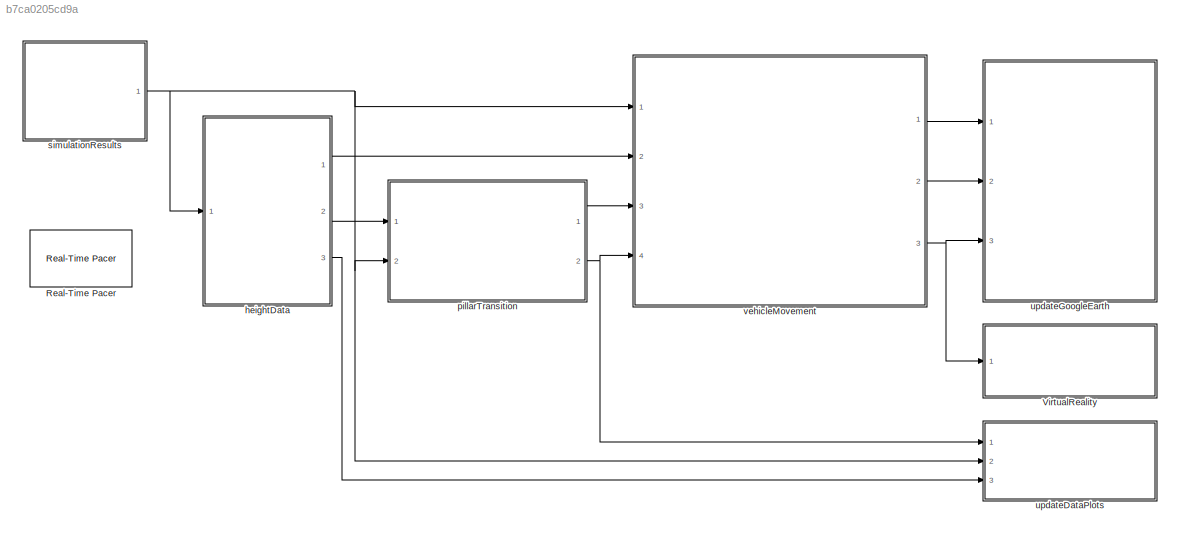
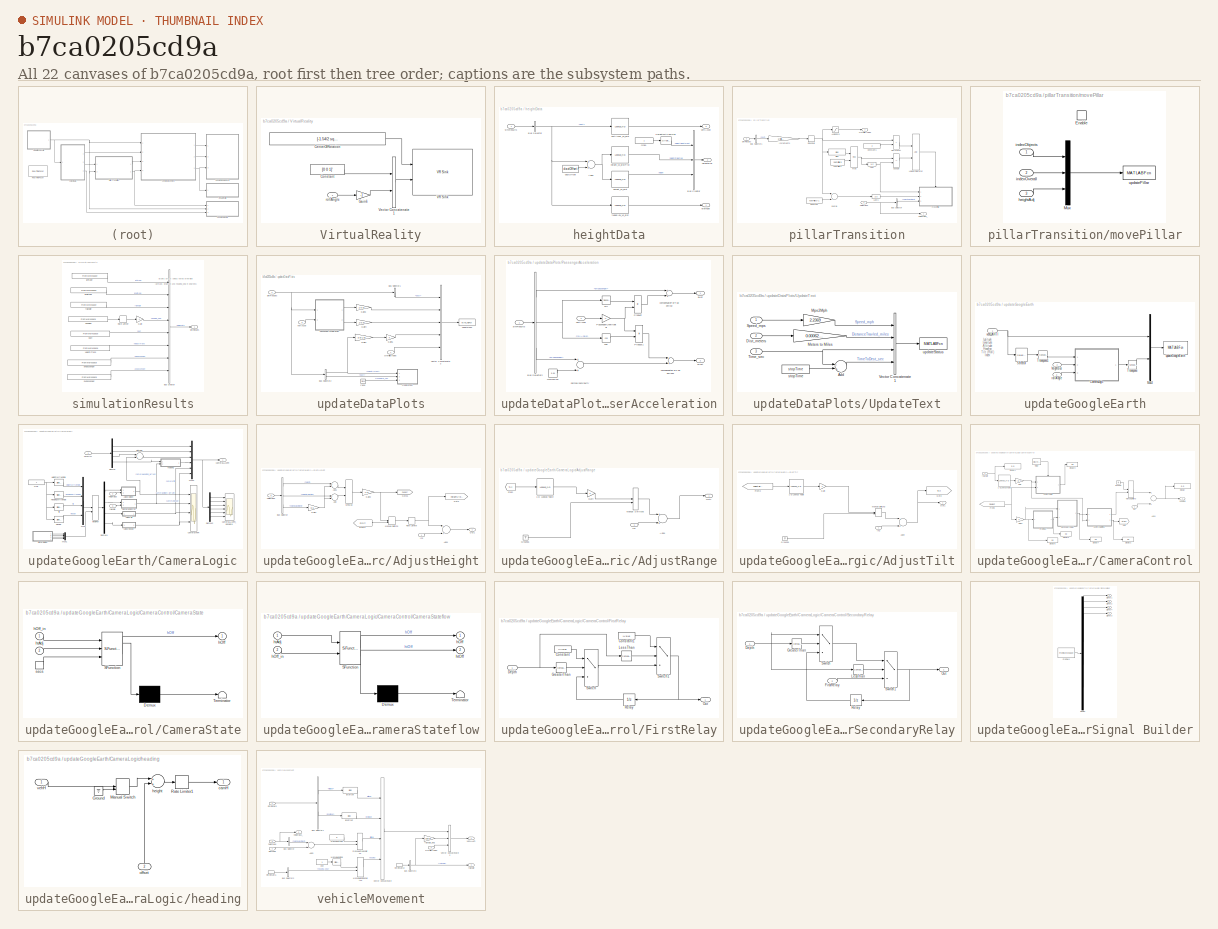
[diagram: thumbnail index - all 22 canvases of the model, root first then tree order]
MODEL slx_b7ca0205cd9a
KIND model
CONFIG AbsTol = auto
CONFIG EnableMultiTasking = on
CONFIG FixedStep = 0.025
CONFIG MaxStep = 0.1
CONFIG MinStep = auto
CONFIG RelTol = 1e-3
CONFIG SampleTimeConstraint = Unconstrained
CONFIG Solver = FixedStepDiscrete
CONFIG SolverName = FixedStepDiscrete
CONFIG StartTime = startTime
CONFIG StopTime = stopTime
BLOCK [Reference] Real-Time Pacer  REF=realtime_pacer_lib/Real-Time Pacer
  Ports = []
  SourceBlock = realtime_pacer_lib/Real-Time Pacer
  SourceType = RealTime_Pacer
BLOCK [SubSystem] VirtualReality
  Ports = [1]
  RequestExecContextInheritance = off
BLOCK [Constant] VirtualReality/CenterOfRotation
  SampleTime = -1
  Value = [-1.54/2 sqrt(Chassis.TubeRadius^2-(1.54/2)^2) 0]'
BLOCK [Constant] VirtualReality/Constant
  SampleTime = -1
  Value = [0 0 1]'
BLOCK [Gain] VirtualReality/Gain6
  Gain = -1
  OutDataTypeStr = Inherit: Inherit via internal rule
  ParamDataTypeStr = Inherit: Inherit via internal rule
  SaturateOnIntegerOverflow = off
BLOCK [Reference] VirtualReality/VR Sink  REF=vrlib/VR Sink
  InstantiateOnLoad = on
  Ports = [2]
  SourceBlock = vrlib/VR Sink
  SourceProductBaseCode = SL
  SourceProductName = Simulink
  SourceType = Virtual Reality Sink
BLOCK [Concatenate] VirtualReality/Vector Concatenate1
  Ports = [2, 1]
BLOCK [Inport] VirtualReality/rollAngle
  IconDisplay = Port number
BLOCK [SubSystem] heightData
  Ports = [1, 3]
  RequestExecContextInheritance = off
BLOCK [Sum] heightData/Add1
  InputSameDT = off
  OutDataTypeStr = Inherit: Inherit via internal rule
  Ports = [2, 1]
  SaturateOnIntegerOverflow = off
BLOCK [BusCreator] heightData/Bus Creator
  DisplayOption = bar
  InheritFromInputs = on
  Inputs = 3
  Ports = [3, 1]
BLOCK [BusSelector] heightData/Bus Selector
  OutputAsBus = off
  OutputSignals = dact
  Ports = [1, 1]
BLOCK [Reference] heightData/HeightWrtVehicle1  REF=simulink/Math
Operations/Slider
Gain
  Ports = [1, 1]
  SourceBlock = simulink/Math\nOperations/Slider\nGain
  SourceProductBaseCode = SL
  SourceProductName = Simulink
  SourceType = Slider Gain
BLOCK [Constant] heightData/One1
  VectorParams1D = off
BLOCK [Constant] heightData/dactOffset
  Value = dactOffset
BLOCK [Outport] heightData/elevTube
  IconDisplay = Port number
BLOCK [Outport] heightData/heightBus
  IconDisplay = Port number
  Port = 2
BLOCK [Lookup_n-D] heightData/height_vs_dist
  BeginIndexSearchUsingPreviousIndexResult = on
  BreakpointsForDimension1 = z_dist
  ExtrapMethod = Clip
  InternalRulePriority = Speed
  NumberOfTableDimensions = 1
  Ports = [1, 1]
  RndMeth = Simplest
  Table = z_height
BLOCK [Lookup_n-D] heightData/height_vs_distProj
  BeginIndexSearchUsingPreviousIndexResult = on
  BreakpointsForDimension1 = z_dist-200
  ExtrapMethod = Clip
  InternalRulePriority = Speed
  NumberOfTableDimensions = 1
  Ports = [1, 1]
  RndMeth = Simplest
  Table = z_height
  UseLastTableValue = on
BLOCK [Inport] heightData/simResults
  IconDisplay = Port number
BLOCK [Lookup_n-D] heightData/tubeElev_vs_dist
  BeginIndexSearchUsingPreviousIndexResult = on
  BreakpointsForDimension1 = z_dist
  InternalRulePriority = Speed
  NumberOfTableDimensions = 1
  Ports = [1, 1]
  RndMeth = Simplest
  Table = z_elevTube
BLOCK [Outport] heightData/vertAccel
  IconDisplay = Port number
  Port = 3
BLOCK [Lookup_n-D] heightData/vertAccel_vs_dist
  BeginIndexSearchUsingPreviousIndexResult = on
  BreakpointsForDimension1 = z_dist
  ExtrapMethod = Clip
  InternalRulePriority = Speed
  NumberOfTableDimensions = 1
  Ports = [1, 1]
  RndMeth = Simplest
  Table = z_accel
  UseLastTableValue = on
BLOCK [SubSystem] pillarTransition
  Ports = [2, 2]
  RequestExecContextInheritance = off
BLOCK [Saturate] pillarTransition/AvoidZero
  InputPortMap = u0
  LowerLimit = 1
  Ports = [1, 1]
  UpperLimit = inf
BLOCK [Bias] pillarTransition/Bias
  Bias = numPillars-2
  SaturateOnIntegerOverflow = off
BLOCK [BusSelector] pillarTransition/Bus Selector
  OutputAsBus = off
  OutputSignals = heightAdjustment
  Ports = [1, 1]
BLOCK [BusSelector] pillarTransition/Bus Selector1
  OutputAsBus = off
  OutputSignals = dact
  Ports = [1, 1]
BLOCK [RelationalOperator] pillarTransition/Change
  InputSameDT = off
  Operator = ~=
  OutDataTypeStr = boolean
  Ports = [2, 1]
BLOCK [Constant] pillarTransition/Constant
  Value = numPillars-1
BLOCK [Constant] pillarTransition/Constant1
  Value = 2
BLOCK [Gain] pillarTransition/Increments
  Gain = 1/pillarSpacing
  OutDataTypeStr = Inherit: Inherit via internal rule
  ParamDataTypeStr = Inherit: Inherit via internal rule
  SaturateOnIntegerOverflow = off
BLOCK [UnitDelay] pillarTransition/Last
  HasFrameUpgradeWarning = on
  SampleTime = -1
BLOCK [UnitDelay] pillarTransition/Last1
  HasFrameUpgradeWarning = on
  InitialCondition = 1
  SampleTime = -1
BLOCK [Logic] pillarTransition/Logical Operator
  AllPortsSameDT = off
  OutDataTypeStr = boolean
  Ports = [2, 1]
BLOCK [RelationalOperator] pillarTransition/NotAtStart
  InputSameDT = off
  Operator = >
  OutDataTypeStr = boolean
  Ports = [2, 1]
BLOCK [Rounding] pillarTransition/RoundUp
  Operator = ceil
BLOCK [Outport] pillarTransition/crntPillarIndex
  IconDisplay = Port number
  Port = 2
BLOCK [Inport] pillarTransition/heightBus
  IconDisplay = Port number
BLOCK [Outport] pillarTransition/heightBus_
  IconDisplay = Port number
BLOCK [Math] pillarTransition/mod
  Operator = mod
  Ports = [2, 1]
BLOCK [SubSystem] pillarTransition/movePillar
  Ports = [3, 0, 1]
  RequestExecContextInheritance = off
  TreatAsAtomicUnit = on
BLOCK [EnablePort] pillarTransition/movePillar/Enable
  Ports = []
  StatesWhenEnabling = reset
BLOCK [Mux] pillarTransition/movePillar/Mux
  DisplayOption = bar
  Inputs = 3
  Ports = [3, 1]
BLOCK [Inport] pillarTransition/movePillar/heightAdj
  IconDisplay = Port number
  Port = 3
BLOCK [Inport] pillarTransition/movePillar/indexObjects
  IconDisplay = Port number
BLOCK [Inport] pillarTransition/movePillar/indexOverall
  IconDisplay = Port number
  Port = 2
BLOCK [MATLABFcn] pillarTransition/movePillar/updatePillar
  MATLABFcn = updatePillars
  OutputDimensions = 0
  Ports = [1]
BLOCK [Constant] pillarTransition/numPillars
  Value = numPillars
BLOCK [Sum] pillarTransition/overall
  InputSameDT = off
  OutDataTypeStr = Inherit: Inherit via internal rule
  Ports = [2, 1]
  SaturateOnIntegerOverflow = off
BLOCK [Inport] pillarTransition/simResults
  IconDisplay = Port number
  Port = 2
BLOCK [SubSystem] simulationResults
  Ports = [0, 1]
  RequestExecContextInheritance = off
BLOCK [BusCreator] simulationResults/Bus Creator
  DisplayOption = bar
  InheritFromInputs = on
  Inputs = 8
  Ports = [8, 1]
BLOCK [Gain] simulationResults/Gain
  Gain = -1
  OutDataTypeStr = Inherit: Inherit via internal rule
  ParamDataTypeStr = Inherit: Inherit via internal rule
  SaturateOnIntegerOverflow = off
BLOCK [RateLimiter] simulationResults/Rate Limiter
  FallingSlewLimit = -5
  InitialCondition = getLOatTime(logsout, 'heading_deg', startTime)
  RisingSlewLimit = 5
  SampleTimeMode = inherited
BLOCK [FromWorkspace] simulationResults/aHpassenger
  VariableName = logsout.getElement('aHpassenger')
  ZeroCross = on
BLOCK [FromWorkspace] simulationResults/aVpassenger
  VariableName = logsout.getElement('aVpassenger')
  ZeroCross = on
BLOCK [FromWorkspace] simulationResults/dact
  VariableName = logsout.getElement('dact')
  ZeroCross = on
BLOCK [FromWorkspace] simulationResults/heading
  VariableName = logsout.getElement('heading_deg')
  ZeroCross = on
BLOCK [FromWorkspace] simulationResults/latitude
  VariableName = logsout.getElement('lat')
  ZeroCross = on
BLOCK [FromWorkspace] simulationResults/longitude
  VariableName = logsout.getElement('lon')
  ZeroCross = on
BLOCK [FromWorkspace] simulationResults/rollAngle
  VariableName = logsout.getElement('rollAngle')
  ZeroCross = on
BLOCK [Outport] simulationResults/simResults
  IconDisplay = Port number
BLOCK [FromWorkspace] simulationResults/velocityTrans
  VariableName = logsout.getElement('velocityTrans')
  ZeroCross = on
BLOCK [SubSystem] updateDataPlots
  Ports = [3]
  RequestExecContextInheritance = off
BLOCK [BusSelector] updateDataPlots/Bus Selector1
  OutputAsBus = off
  OutputSignals = dact
  Ports = [1, 1]
BLOCK [BusSelector] updateDataPlots/Bus Selector2
  OutputAsBus = off
  OutputSignals = velocityTrans,dact
  Ports = [1, 2]
BLOCK [Clock] updateDataPlots/Clock
BLOCK [Gain] updateDataPlots/Gain1
  Gain = 3.6/1.61
  OutDataTypeStr = Inherit: Inherit via internal rule
  ParamDataTypeStr = Inherit: Inherit via internal rule
  SaturateOnIntegerOverflow = off
BLOCK [Gain] updateDataPlots/Gain3
  Gain = 1/9.81
  OutDataTypeStr = Inherit: Inherit via internal rule
  ParamDataTypeStr = Inherit: Inherit via internal rule
  SaturateOnIntegerOverflow = off
BLOCK [Gain] updateDataPlots/Gain4
  Gain = 1/9.81
  OutDataTypeStr = Inherit: Inherit via internal rule
  ParamDataTypeStr = Inherit: Inherit via internal rule
  SaturateOnIntegerOverflow = off
BLOCK [Gain] updateDataPlots/Gain5
  OutDataTypeStr = Inherit: Inherit via internal rule
  ParamDataTypeStr = Inherit: Inherit via internal rule
  SaturateOnIntegerOverflow = off
BLOCK [SubSystem] updateDataPlots/PassengerAcceleration
  Ports = [2, 2]
  RequestExecContextInheritance = off
BLOCK [BusSelector] updateDataPlots/PassengerAcceleration/Bus Selector2
  OutputAsBus = off
  OutputSignals = aHpassenger,rollAngle,aVpassenger
  Ports = [1, 3]
BLOCK [Constant] updateDataPlots/PassengerAcceleration/Normalize
  Value = 9.81
BLOCK [Gain] updateDataPlots/PassengerAcceleration/PassengerCentripetal
  Gain = -1
  OutDataTypeStr = Inherit: Inherit via internal rule
  ParamDataTypeStr = Inherit: Inherit via internal rule
  SaturateOnIntegerOverflow = off
BLOCK [Product] updateDataPlots/PassengerAcceleration/Product
  InputSameDT = off
  OutDataTypeStr = Inherit: Inherit via internal rule
  Ports = [2, 1]
  RndMeth = Floor
  SaturateOnIntegerOverflow = off
BLOCK [Product] updateDataPlots/PassengerAcceleration/Product1
  InputSameDT = off
  OutDataTypeStr = Inherit: Inherit via internal rule
  Ports = [2, 1]
  RndMeth = Floor
  SaturateOnIntegerOverflow = off
BLOCK [Outport] updateDataPlots/PassengerAcceleration/aHor
  IconDisplay = Port number
BLOCK [Outport] updateDataPlots/PassengerAcceleration/aVert
  IconDisplay = Port number
  Port = 2
BLOCK [Sum] updateDataPlots/PassengerAcceleration/compensateForTubeRise
  InputSameDT = off
  OutDataTypeStr = Inherit: Inherit via internal rule
  Ports = [2, 1]
  SaturateOnIntegerOverflow = off
BLOCK [Sum] updateDataPlots/PassengerAcceleration/compensateForTubeRise1
  InputSameDT = off
  OutDataTypeStr = Inherit: Inherit via internal rule
  Ports = [2, 1]
  SaturateOnIntegerOverflow = off
BLOCK [Trigonometry] updateDataPlots/PassengerAcceleration/cos
  Operator = cos
  Ports = [1, 1]
BLOCK [Sum] updateDataPlots/PassengerAcceleration/normalizeGravity
  InputSameDT = off
  OutDataTypeStr = Inherit: Inherit via internal rule
  Ports = [2, 1]
  SaturateOnIntegerOverflow = off
BLOCK [Inport] updateDataPlots/PassengerAcceleration/simResults
  IconDisplay = Port number
BLOCK [Trigonometry] updateDataPlots/PassengerAcceleration/sin
  Ports = [1, 1]
BLOCK [Inport] updateDataPlots/PassengerAcceleration/vertAccel
  IconDisplay = Port number
  Port = 2
BLOCK [SubSystem] updateDataPlots/UpdateText
  Ports = [3]
  RequestExecContextInheritance = off
BLOCK [Sum] updateDataPlots/UpdateText/Add
  InputSameDT = off
  Inputs = -+
  OutDataTypeStr = Inherit: Inherit via internal rule
  Ports = [2, 1]
  SaturateOnIntegerOverflow = off
BLOCK [Inport] updateDataPlots/UpdateText/Dist_meters
  IconDisplay = Port number
  Port = 2
BLOCK [Gain] updateDataPlots/UpdateText/Meters to Miles
  Gain = 0.000621371
  OutDataTypeStr = Inherit: Inherit via internal rule
  ParamDataTypeStr = Inherit: Inherit via internal rule
  SaturateOnIntegerOverflow = off
BLOCK [Gain] updateDataPlots/UpdateText/Mps2Mph
  Gain = 2.2369
  OutDataTypeStr = Inherit: Inherit via internal rule
  ParamDataTypeStr = Inherit: Inherit via internal rule
  SaturateOnIntegerOverflow = off
BLOCK [Inport] updateDataPlots/UpdateText/Speed_mps
  IconDisplay = Port number
BLOCK [Inport] updateDataPlots/UpdateText/Time_sec
  IconDisplay = Port number
  Port = 3
BLOCK [Concatenate] updateDataPlots/UpdateText/Vector Concatenate1
  ConcatenateDimension = 2
  Mode = Multidimensional array
  NumInputs = 4
  Ports = [4, 1]
BLOCK [Constant] updateDataPlots/UpdateText/stopTime
  Value = stopTime
BLOCK [MATLABFcn] updateDataPlots/UpdateText/updateStatus
  MATLABFcn = updateStatus
  OutputDimensions = 0
  Ports = [1]
BLOCK [Concatenate] updateDataPlots/Vector Concatenate3
  ConcatenateDimension = 2
  Mode = Multidimensional array
  NumInputs = 5
  Ports = [5, 1]
BLOCK [Inport] updateDataPlots/crntPillarIndex
  IconDisplay = Port number
BLOCK [Inport] updateDataPlots/simResults
  IconDisplay = Port number
  Port = 2
BLOCK [MATLABFcn] updateDataPlots/updateAxes
  MATLABFcn = updateAxes
  OutputDimensions = 0
  Ports = [1]
BLOCK [Inport] updateDataPlots/vertAccel
  IconDisplay = Port number
  Port = 3
BLOCK [SubSystem] updateGoogleEarth
  Ports = [3]
  RequestExecContextInheritance = off
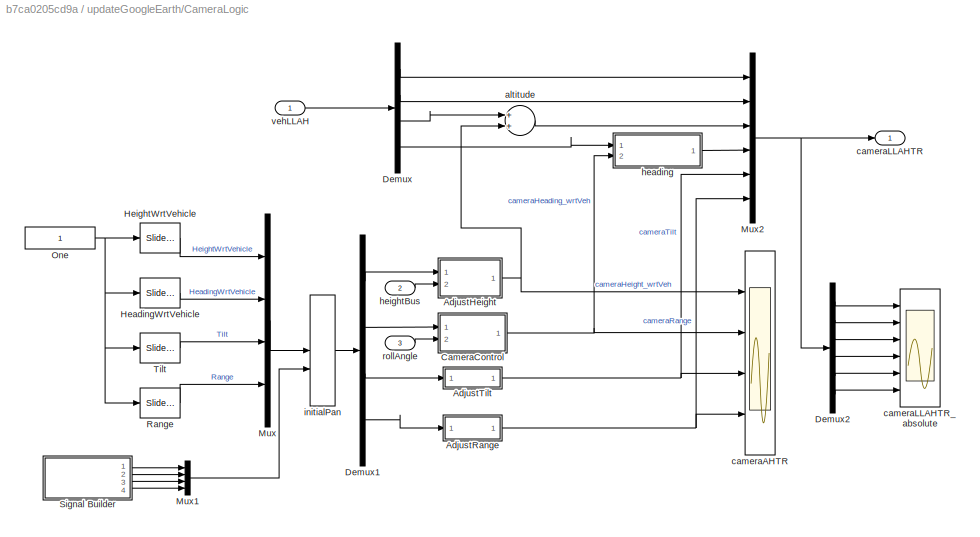
BLOCK [SubSystem] updateGoogleEarth/CameraLogic
  Ports = [3, 1]
  RequestExecContextInheritance = off
BLOCK [SubSystem] updateGoogleEarth/CameraLogic/AdjustHeight
  Ports = [2, 1]
  RequestExecContextInheritance = off
BLOCK [Sum] updateGoogleEarth/CameraLogic/AdjustHeight/Add
  InputSameDT = off
  OutDataTypeStr = Inherit: Inherit via internal rule
  Ports = [2, 1]
  SaturateOnIntegerOverflow = off
BLOCK [Sum] updateGoogleEarth/CameraLogic/AdjustHeight/Add1
  InputSameDT = off
  OutDataTypeStr = Inherit: Inherit via internal rule
  Ports = [2, 1]
  SaturateOnIntegerOverflow = off
BLOCK [Sum] updateGoogleEarth/CameraLogic/AdjustHeight/Add4
  InputSameDT = off
  OutDataTypeStr = Inherit: Inherit via internal rule
  Ports = [2, 1]
  SaturateOnIntegerOverflow = off
BLOCK [BusSelector] updateGoogleEarth/CameraLogic/AdjustHeight/Bus Selector
  OutputAsBus = off
  OutputSignals = height,heightProjected,heightAdjustment
  Ports = [1, 3]
BLOCK [From] updateGoogleEarth/CameraLogic/AdjustHeight/From3
  GotoTag = htOff
  TagVisibility = global
BLOCK [Gain] updateGoogleEarth/CameraLogic/AdjustHeight/Gain1
  Gain = 0.5
  OutDataTypeStr = Inherit: Inherit via internal rule
  ParamDataTypeStr = Inherit: Inherit via internal rule
  SaturateOnIntegerOverflow = off
BLOCK [Gain] updateGoogleEarth/CameraLogic/AdjustHeight/Gain2
  Gain = -1.5
  OutDataTypeStr = Inherit: Inherit via internal rule
  ParamDataTypeStr = Inherit: Inherit via internal rule
  SaturateOnIntegerOverflow = off
BLOCK [Goto] updateGoogleEarth/CameraLogic/AdjustHeight/Goto
  GotoTag = heightViewAdjust
  TagVisibility = global
BLOCK [Goto] updateGoogleEarth/CameraLogic/AdjustHeight/Goto1
  GotoTag = htAdjust
  TagVisibility = global
BLOCK [Inport] updateGoogleEarth/CameraLogic/AdjustHeight/In2
  IconDisplay = Port number
BLOCK [ManualSwitch] updateGoogleEarth/CameraLogic/AdjustHeight/Manual Switch3
  CurrentSetting = 0
BLOCK [MinMax] updateGoogleEarth/CameraLogic/AdjustHeight/MinMax
  InputSameDT = off
  Inputs = 2
  Ports = [2, 1]
  SaturateOnIntegerOverflow = off
BLOCK [Outport] updateGoogleEarth/CameraLogic/AdjustHeight/Out1
  IconDisplay = Port number
BLOCK [RateLimiter] updateGoogleEarth/CameraLogic/AdjustHeight/Rate Limiter
  FallingSlewLimit = -5
  RisingSlewLimit = 5
  SampleTimeMode = inherited
BLOCK [Inport] updateGoogleEarth/CameraLogic/AdjustHeight/heightBus
  IconDisplay = Port number
  Port = 2
BLOCK [SubSystem] updateGoogleEarth/CameraLogic/AdjustRange
  Ports = [1, 1]
  RequestExecContextInheritance = off
BLOCK [Lookup_n-D] updateGoogleEarth/CameraLogic/AdjustRange/1-D Lookup Table
  BreakpointsForDimension1 = [0 45 90]
  ExtrapMethod = Clip
  InternalRulePriority = Speed
  NumberOfTableDimensions = 1
  Ports = [1, 1]
  RndMeth = Simplest
  Table = [120 80 0]
  UseLastTableValue = on
BLOCK [Sum] updateGoogleEarth/CameraLogic/AdjustRange/Add4
  InputSameDT = off
  OutDataTypeStr = Inherit: Inherit via internal rule
  Ports = [2, 1]
  SaturateOnIntegerOverflow = off
BLOCK [From] updateGoogleEarth/CameraLogic/AdjustRange/From
  GotoTag = Tilt
  TagVisibility = global
BLOCK [Gain] updateGoogleEarth/CameraLogic/AdjustRange/Gain
  OutDataTypeStr = Inherit: Inherit via internal rule
  ParamDataTypeStr = Inherit: Inherit via internal rule
  SaturateOnIntegerOverflow = off
BLOCK [Ground] updateGoogleEarth/CameraLogic/AdjustRange/Ground1
BLOCK [Inport] updateGoogleEarth/CameraLogic/AdjustRange/In2
  IconDisplay = Port number
BLOCK [ManualSwitch] updateGoogleEarth/CameraLogic/AdjustRange/Manual Switch3
BLOCK [Outport] updateGoogleEarth/CameraLogic/AdjustRange/Out1
  IconDisplay = Port number
BLOCK [SubSystem] updateGoogleEarth/CameraLogic/AdjustTilt
  Ports = [1, 1]
  RequestExecContextInheritance = off
BLOCK [Lookup_n-D] updateGoogleEarth/CameraLogic/AdjustTilt/1-D Lookup Table
  BreakpointsForDimension1 = [0 2 30 60]
  InternalRulePriority = Speed
  NumberOfTableDimensions = 1
  Ports = [1, 1]
  RndMeth = Simplest
  Table = [0  -5 -50 -80]
BLOCK [Sum] updateGoogleEarth/CameraLogic/AdjustTilt/Add4
  InputSameDT = off
  OutDataTypeStr = Inherit: Inherit via internal rule
  Ports = [2, 1]
  SaturateOnIntegerOverflow = off
BLOCK [From] updateGoogleEarth/CameraLogic/AdjustTilt/From2
  GotoTag = heightViewAdjust
  TagVisibility = global
BLOCK [Gain] updateGoogleEarth/CameraLogic/AdjustTilt/Gain
  OutDataTypeStr = Inherit: Inherit via internal rule
  ParamDataTypeStr = Inherit: Inherit via internal rule
  SaturateOnIntegerOverflow = off
BLOCK [Goto] updateGoogleEarth/CameraLogic/AdjustTilt/Goto
  GotoTag = Tilt
  TagVisibility = global
BLOCK [Ground] updateGoogleEarth/CameraLogic/AdjustTilt/Ground1
BLOCK [Inport] updateGoogleEarth/CameraLogic/AdjustTilt/In2
  IconDisplay = Port number
BLOCK [ManualSwitch] updateGoogleEarth/CameraLogic/AdjustTilt/Manual Switch3
BLOCK [Outport] updateGoogleEarth/CameraLogic/AdjustTilt/Out1
  IconDisplay = Port number
BLOCK [SubSystem] updateGoogleEarth/CameraLogic/CameraControl
  Ports = [2, 1]
  RequestExecContextInheritance = off
BLOCK [Lookup_n-D] updateGoogleEarth/CameraLogic/CameraControl/1-D Lookup Table
  BreakpointsForDimension1 = [-0.5 0 0.5]
  InternalRulePriority = Speed
  NumberOfTableDimensions = 1
  Ports = [1, 1]
  RndMeth = Simplest
  Table = [-30 0 30]
BLOCK [Sum] updateGoogleEarth/CameraLogic/CameraControl/Add4
  InputSameDT = off
  OutDataTypeStr = Inherit: Inherit via internal rule
  Ports = [2, 1]
  SaturateOnIntegerOverflow = off
BLOCK [SubSystem] updateGoogleEarth/CameraLogic/CameraControl/CameraState
  ErrorFcn = Stateflow.Translate.translate
  PermitHierarchicalResolution = ExplicitOnly
  Ports = [2, 1, 0, 1]
  RequestExecContextInheritance = off
  SFBlockType = Chart
  TreatAsAtomicUnit = on
BLOCK [Demux] updateGoogleEarth/CameraLogic/CameraControl/CameraState/ Demux 
  Outputs = 1
  Ports = [1, 1]
BLOCK [S-Function] updateGoogleEarth/CameraLogic/CameraControl/CameraState/ SFunction 
  EnableBusSupport = off
  FunctionName = sf_sfun
  PortCounts = [3 2]
  Ports = [3, 2]
  SFcnIsStateOwnerBlock = off
  SFunctionDeploymentMode = off
  Tag = Stateflow S-Function 3
BLOCK [Terminator] updateGoogleEarth/CameraLogic/CameraControl/CameraState/ Terminator 
BLOCK [Outport] updateGoogleEarth/CameraLogic/CameraControl/CameraState/hOff
  IconDisplay = Port number
BLOCK [Inport] updateGoogleEarth/CameraLogic/CameraControl/CameraState/hOff_in
  IconDisplay = Port number
BLOCK [Inport] updateGoogleEarth/CameraLogic/CameraControl/CameraState/htAdj
  IconDisplay = Port number
  Port = 2
BLOCK [TriggerPort] updateGoogleEarth/CameraLogic/CameraControl/CameraState/secs
  Ports = [0, 1]
  ShowOutputPort = on
  StatesWhenEnabling = held
  VariantControl = (inherit)
BLOCK [SubSystem] updateGoogleEarth/CameraLogic/CameraControl/CameraStateflow
  ErrorFcn = Stateflow.Translate.translate
  PermitHierarchicalResolution = ExplicitOnly
  Ports = [2, 2]
  RequestExecContextInheritance = off
  SFBlockType = Chart
  TreatAsAtomicUnit = on
BLOCK [Demux] updateGoogleEarth/CameraLogic/CameraControl/CameraStateflow/ Demux 
  Outputs = 1
  Ports = [1, 1]
BLOCK [S-Function] updateGoogleEarth/CameraLogic/CameraControl/CameraStateflow/ SFunction 
  EnableBusSupport = off
  FunctionName = sf_sfun
  Parameters = camHt_1LVal,camHt_1UVal
  PortCounts = [2 3]
  Ports = [2, 3]
  SFcnIsStateOwnerBlock = off
  SFunctionDeploymentMode = off
  Tag = Stateflow S-Function 1
BLOCK [Terminator] updateGoogleEarth/CameraLogic/CameraControl/CameraStateflow/ Terminator 
BLOCK [Outport] updateGoogleEarth/CameraLogic/CameraControl/CameraStateflow/hOff
  IconDisplay = Port number
BLOCK [Inport] updateGoogleEarth/CameraLogic/CameraControl/CameraStateflow/hOff_in
  IconDisplay = Port number
  Port = 2
BLOCK [Inport] updateGoogleEarth/CameraLogic/CameraControl/CameraStateflow/htAdj
  IconDisplay = Port number
BLOCK [Outport] updateGoogleEarth/CameraLogic/CameraControl/CameraStateflow/htOff
  IconDisplay = Port number
  Port = 2
BLOCK [Display] updateGoogleEarth/CameraLogic/CameraControl/Display
  Decimation = 1
  Ports = [1]
BLOCK [Display] updateGoogleEarth/CameraLogic/CameraControl/Display1
  Decimation = 1
  Ports = [1]
BLOCK [Display] updateGoogleEarth/CameraLogic/CameraControl/Display2
  Decimation = 1
  Ports = [1]
BLOCK [Display] updateGoogleEarth/CameraLogic/CameraControl/Display3
  Decimation = 1
  Ports = [1]
BLOCK [Display] updateGoogleEarth/CameraLogic/CameraControl/Display5
  Decimation = 1
  Ports = [1]
BLOCK [Display] updateGoogleEarth/CameraLogic/CameraControl/Display6
  Decimation = 1
  Ports = [1]
BLOCK [Display] updateGoogleEarth/CameraLogic/CameraControl/Display7
  Decimation = 1
  Ports = [1]
BLOCK [SubSystem] updateGoogleEarth/CameraLogic/CameraControl/FirstRelay
  Ports = [1, 1]
  RequestExecContextInheritance = off
BLOCK [Constant] updateGoogleEarth/CameraLogic/CameraControl/FirstRelay/Constant
  Value = UValue
BLOCK [Constant] updateGoogleEarth/CameraLogic/CameraControl/FirstRelay/Constant1
  Value = LValue
BLOCK [Inport] updateGoogleEarth/CameraLogic/CameraControl/FirstRelay/Depth
  IconDisplay = Port number
BLOCK [Reference] updateGoogleEarth/CameraLogic/CameraControl/FirstRelay/GreaterThan  REF=simulink/Logic and Bit
Operations/Compare
To Constant
  Ports = [1, 1]
  SourceBlock = simulink/Logic and Bit\nOperations/Compare\nTo Constant
  SourceProductBaseCode = SL
  SourceProductName = Simulink
  SourceType = Compare To Constant
BLOCK [Reference] updateGoogleEarth/CameraLogic/CameraControl/FirstRelay/LessThan  REF=simulink/Logic and Bit
Operations/Compare
To Constant
  Ports = [1, 1]
  SourceBlock = simulink/Logic and Bit\nOperations/Compare\nTo Constant
  SourceProductBaseCode = SL
  SourceProductName = Simulink
  SourceType = Compare To Constant
BLOCK [Outport] updateGoogleEarth/CameraLogic/CameraControl/FirstRelay/Out
  IconDisplay = Port number
BLOCK [UnitDelay] updateGoogleEarth/CameraLogic/CameraControl/FirstRelay/Relay
  HasFrameUpgradeWarning = on
  SampleTime = -1
BLOCK [Switch] updateGoogleEarth/CameraLogic/CameraControl/FirstRelay/Switch
  Criteria = u2 > Threshold
  InputSameDT = off
  SaturateOnIntegerOverflow = off
BLOCK [Switch] updateGoogleEarth/CameraLogic/CameraControl/FirstRelay/Switch1
  Criteria = u2 > Threshold
  InputSameDT = off
  SaturateOnIntegerOverflow = off
BLOCK [From] updateGoogleEarth/CameraLogic/CameraControl/From2
  GotoTag = htAdjust
  TagVisibility = global
BLOCK [Gain] updateGoogleEarth/CameraLogic/CameraControl/Gain
  Gain = -0.7
  OutDataTypeStr = Inherit: Inherit via internal rule
  ParamDataTypeStr = Inherit: Inherit via internal rule
  SaturateOnIntegerOverflow = off
BLOCK [Gain] updateGoogleEarth/CameraLogic/CameraControl/Gain1
  OutDataTypeStr = Inherit: Inherit via internal rule
  ParamDataTypeStr = Inherit: Inherit via internal rule
  SaturateOnIntegerOverflow = off
BLOCK [Goto] updateGoogleEarth/CameraLogic/CameraControl/Goto
  GotoTag = htOff
  TagVisibility = global
BLOCK [Ground] updateGoogleEarth/CameraLogic/CameraControl/Ground
BLOCK [Inport] updateGoogleEarth/CameraLogic/CameraControl/In2
  IconDisplay = Port number
BLOCK [ManualSwitch] updateGoogleEarth/CameraLogic/CameraControl/Manual Switch3
  CurrentSetting = 0
BLOCK [SubSystem] updateGoogleEarth/CameraLogic/CameraControl/SecondaryRelay
  Ports = [2, 1]
  RequestExecContextInheritance = off
BLOCK [Inport] updateGoogleEarth/CameraLogic/CameraControl/SecondaryRelay/Depth
  IconDisplay = Port number
BLOCK [Inport] updateGoogleEarth/CameraLogic/CameraControl/SecondaryRelay/FirstRelay
  IconDisplay = Port number
  Port = 2
BLOCK [Reference] updateGoogleEarth/CameraLogic/CameraControl/SecondaryRelay/GreaterThan  REF=simulink/Logic and Bit
Operations/Compare
To Constant
  Ports = [1, 1]
  SourceBlock = simulink/Logic and Bit\nOperations/Compare\nTo Constant
  SourceProductBaseCode = SL
  SourceProductName = Simulink
  SourceType = Compare To Constant
BLOCK [Reference] updateGoogleEarth/CameraLogic/CameraControl/SecondaryRelay/LessThan  REF=simulink/Logic and Bit
Operations/Compare
To Constant
  Ports = [1, 1]
  SourceBlock = simulink/Logic and Bit\nOperations/Compare\nTo Constant
  SourceProductBaseCode = SL
  SourceProductName = Simulink
  SourceType = Compare To Constant
BLOCK [Outport] updateGoogleEarth/CameraLogic/CameraControl/SecondaryRelay/Out
  IconDisplay = Port number
BLOCK [UnitDelay] updateGoogleEarth/CameraLogic/CameraControl/SecondaryRelay/Relay
  HasFrameUpgradeWarning = on
  SampleTime = -1
BLOCK [Switch] updateGoogleEarth/CameraLogic/CameraControl/SecondaryRelay/Switch
  Criteria = u2 > Threshold
  InputSameDT = off
  SaturateOnIntegerOverflow = off
BLOCK [Switch] updateGoogleEarth/CameraLogic/CameraControl/SecondaryRelay/Switch1
  Criteria = u2 > Threshold
  InputSameDT = off
  SaturateOnIntegerOverflow = off
BLOCK [DiscretePulseGenerator] updateGoogleEarth/CameraLogic/CameraControl/Timer
  Period = 1
  Ports = [0, 1]
  PulseType = Time based
  PulseWidth = 50
BLOCK [Outport] updateGoogleEarth/CameraLogic/CameraControl/heading
  IconDisplay = Port number
BLOCK [Inport] updateGoogleEarth/CameraLogic/CameraControl/rollAngle
  IconDisplay = Port number
  Port = 2
BLOCK [Demux] updateGoogleEarth/CameraLogic/Demux
  DisplayOption = bar
  Ports = [1, 4]
BLOCK [Demux] updateGoogleEarth/CameraLogic/Demux1
  DisplayOption = bar
  Ports = [1, 4]
BLOCK [Demux] updateGoogleEarth/CameraLogic/Demux2
  DisplayOption = bar
  Outputs = 6
  Ports = [1, 6]
BLOCK [Reference] updateGoogleEarth/CameraLogic/HeadingWrtVehicle  REF=simulink/Math
Operations/Slider
Gain
  Ports = [1, 1]
  SourceBlock = simulink/Math\nOperations/Slider\nGain
  SourceProductBaseCode = SL
  SourceProductName = Simulink
  SourceType = Slider Gain
BLOCK [Reference] updateGoogleEarth/CameraLogic/HeightWrtVehicle  REF=simulink/Math
Operations/Slider
Gain
  Ports = [1, 1]
  SourceBlock = simulink/Math\nOperations/Slider\nGain
  SourceProductBaseCode = SL
  SourceProductName = Simulink
  SourceType = Slider Gain
BLOCK [Mux] updateGoogleEarth/CameraLogic/Mux
  DisplayOption = bar
  Ports = [4, 1]
BLOCK [Mux] updateGoogleEarth/CameraLogic/Mux1
  DisplayOption = bar
  Ports = [4, 1]
BLOCK [Mux] updateGoogleEarth/CameraLogic/Mux2
  DisplayOption = bar
  Inputs = 6
  Ports = [6, 1]
BLOCK [Constant] updateGoogleEarth/CameraLogic/One
  VectorParams1D = off
BLOCK [Reference] updateGoogleEarth/CameraLogic/Range  REF=simulink/Math
Operations/Slider
Gain
  Ports = [1, 1]
  SourceBlock = simulink/Math\nOperations/Slider\nGain
  SourceProductBaseCode = SL
  SourceProductName = Simulink
  SourceType = Slider Gain
BLOCK [SubSystem] updateGoogleEarth/CameraLogic/Signal Builder
  ClipboardFcn = sigbuilder_block('clipboard');
  CloseFcn = sigbuilder_block('close');
  ContinueFcn = sigbuilder_block('continue');
  CopyFcn = sigbuilder_block('copy');
  DeleteFcn = sigbuilder_block('delete');
  LoadFcn = sigbuilder_block('load');
  MaskHideContents = on
  ModelCloseFcn = sigbuilder_block('modelClose');
  NameChangeFcn = sigbuilder_block('namechange');
  OpenFcn = sigbuilder_block('open',[679.5 100.5 550.5 399.75 ]);
  PauseFcn = sigbuilder_block('pause');
  Ports = [0, 4]
  PreSaveFcn = sigbuilder_block('preSave');
  RequestExecContextInheritance = off
  StartFcn = sigbuilder_block('start');
  StopFcn = sigbuilder_block('stop');
  Tag = STV Subsys
BLOCK [Demux] updateGoogleEarth/CameraLogic/Signal Builder/Demux
  Ports = [1, 4]
  Tag = STV Demux
BLOCK [FromWorkspace] updateGoogleEarth/CameraLogic/Signal Builder/FromWs
  SampleTime = 0.025
  Tag = STV FromWs
  VariableName = tuvar
  ZeroCross = on
BLOCK [Outport] updateGoogleEarth/CameraLogic/Signal Builder/Signal 1
  IconDisplay = Port number
  Tag = STV Outport
BLOCK [Outport] updateGoogleEarth/CameraLogic/Signal Builder/Signal 2
  IconDisplay = Port number
  Port = 2
  Tag = STV Outport
BLOCK [Outport] updateGoogleEarth/CameraLogic/Signal Builder/Signal 3
  IconDisplay = Port number
  Port = 4
  Tag = STV Outport
BLOCK [Outport] updateGoogleEarth/CameraLogic/Signal Builder/Signal 4
  IconDisplay = Port number
  Port = 3
  Tag = STV Outport
BLOCK [Reference] updateGoogleEarth/CameraLogic/Tilt  REF=simulink/Math
Operations/Slider
Gain
  Ports = [1, 1]
  SourceBlock = simulink/Math\nOperations/Slider\nGain
  SourceProductBaseCode = SL
  SourceProductName = Simulink
  SourceType = Slider Gain
BLOCK [Sum] updateGoogleEarth/CameraLogic/altitude
  InputSameDT = off
  OutDataTypeStr = Inherit: Inherit via internal rule
  Ports = [2, 1]
  SaturateOnIntegerOverflow = off
BLOCK [Scope] updateGoogleEarth/CameraLogic/cameraAHTR
  Floating = off
  NumInputPorts = 4
  Ports = [4]
  ScopeSpecificationString = C++SS(StrPVP('Location','[-1222, 259, -784, 1069]'),StrPVP('Open','off'),StrPVP('ZoomMode','yonly'),MxPVP('AxesTitles',54,'struct(''axes1'',''%<SignalLabel>'',''axes2'',''%<SignalLabel>'',''axes3'',''%<SignalLabel>'',''axes4'',''%<SignalLabel>'')'),MxPVP('ScopeGraphics',57,'struct(''FigureColor'',''[0.5 0.5 0.5]'',''AxesColor'',''[0 0 0]'',''AxesTickColor'',''[1 1 1]'',''LineColors'',''[1 1 0;1 0 ...<+474ch>
BLOCK [Outport] updateGoogleEarth/CameraLogic/cameraLLAHTR
  IconDisplay = Port number
BLOCK [Scope] updateGoogleEarth/CameraLogic/cameraLLAHTR_absolute
  Floating = off
  NumInputPorts = 6
  Ports = [6]
  ScopeSpecificationString = C++SS(StrPVP('Location','[-1853, 191, -1196, 1158]'),StrPVP('Open','off'),StrPVP('ZoomMode','yonly'),MxPVP('AxesTitles',54,'struct(''axes1'',''%<SignalLabel>'',''axes2'',''%<SignalLabel>'',''axes3'',''%<SignalLabel>'',''axes4'',''%<SignalLabel>'',''axes5'',''%<SignalLabel>'',''axes6'',''%<SignalLabel>'')'),MxPVP('ScopeGraphics',57,'struct(''FigureColor'',''[0.5 0.5 0.5]'',''AxesColor'',''[0 0 0]''...<+539ch>
BLOCK [SubSystem] updateGoogleEarth/CameraLogic/heading
  Ports = [2, 1]
  RequestExecContextInheritance = off
BLOCK [Ground] updateGoogleEarth/CameraLogic/heading/Ground
BLOCK [ManualSwitch] updateGoogleEarth/CameraLogic/heading/Manual Switch
BLOCK [RateLimiter] updateGoogleEarth/CameraLogic/heading/Rate Limiter1
  FallingSlewLimit = -7.5
  InitialCondition = getLOatTime(logsout, 'heading_deg', startTime)
  RisingSlewLimit = 7.5
  SampleTimeMode = inherited
BLOCK [Outport] updateGoogleEarth/CameraLogic/heading/camH
  IconDisplay = Port number
BLOCK [Sum] updateGoogleEarth/CameraLogic/heading/height
  InputSameDT = off
  OutDataTypeStr = Inherit: Inherit via internal rule
  Ports = [2, 1]
  SaturateOnIntegerOverflow = off
BLOCK [Inport] updateGoogleEarth/CameraLogic/heading/offset
  IconDisplay = Port number
  Port = 2
BLOCK [Inport] updateGoogleEarth/CameraLogic/heading/vehH
  IconDisplay = Port number
BLOCK [Inport] updateGoogleEarth/CameraLogic/heightBus
  IconDisplay = Port number
  Port = 2
BLOCK [ManualSwitch] updateGoogleEarth/CameraLogic/initialPan
  CurrentSetting = 0
BLOCK [Inport] updateGoogleEarth/CameraLogic/rollAngle
  IconDisplay = Port number
  Port = 3
BLOCK [Inport] updateGoogleEarth/CameraLogic/vehLLAH
  IconDisplay = Port number
BLOCK [Mux] updateGoogleEarth/Mux3
  DisplayOption = bar
  Inputs = 2
  Ports = [2, 1]
BLOCK [Selector] updateGoogleEarth/Selector
  IndexOptions = Index vector (dialog)
  Indices = [1 2 3 4]
  InputPortWidth = 6
  OutputSizes = 1
  Ports = [1, 1]
BLOCK [Math] updateGoogleEarth/Transpose
  Operator = transpose
  Ports = [1, 1]
BLOCK [Math] updateGoogleEarth/Transpose1
  Operator = transpose
  Ports = [1, 1]
BLOCK [Inport] updateGoogleEarth/heightBus
  IconDisplay = Port number
  Port = 2
BLOCK [Inport] updateGoogleEarth/rollAngle
  IconDisplay = Port number
  Port = 3
BLOCK [MATLABFcn] updateGoogleEarth/updateGoogleEarth
  MATLABFcn = updateGoogleEarth
  OutputDimensions = 0
  Ports = [1]
BLOCK [Inport] updateGoogleEarth/vehLLAHTI
  IconDisplay = Port number
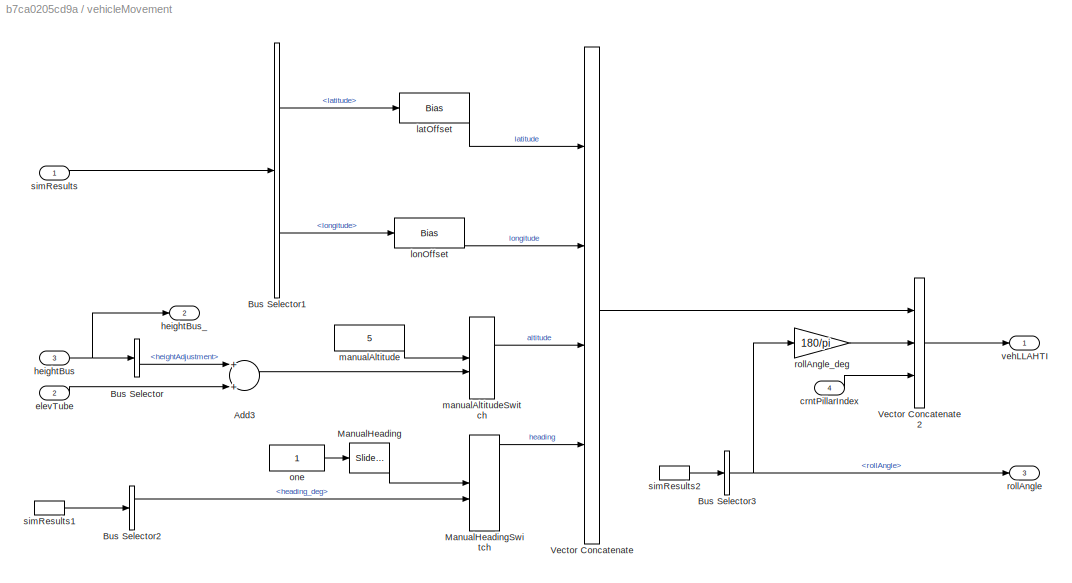
BLOCK [SubSystem] vehicleMovement
  Ports = [4, 3]
  RequestExecContextInheritance = off
BLOCK [Sum] vehicleMovement/Add3
  InputSameDT = off
  OutDataTypeStr = Inherit: Inherit via internal rule
  Ports = [2, 1]
  SaturateOnIntegerOverflow = off
BLOCK [BusSelector] vehicleMovement/Bus Selector
  OutputAsBus = off
  OutputSignals = heightAdjustment
  Ports = [1, 1]
BLOCK [BusSelector] vehicleMovement/Bus Selector1
  OutputAsBus = off
  OutputSignals = latitude,longitude
  Ports = [1, 2]
BLOCK [BusSelector] vehicleMovement/Bus Selector2
  OutputAsBus = off
  OutputSignals = heading_deg
  Ports = [1, 1]
BLOCK [BusSelector] vehicleMovement/Bus Selector3
  OutputAsBus = off
  OutputSignals = rollAngle
  Ports = [1, 1]
BLOCK [Reference] vehicleMovement/ManualHeading  REF=simulink/Math
Operations/Slider
Gain
  Ports = [1, 1]
  SourceBlock = simulink/Math\nOperations/Slider\nGain
  SourceProductBaseCode = SL
  SourceProductName = Simulink
  SourceType = Slider Gain
BLOCK [ManualSwitch] vehicleMovement/ManualHeadingSwitch
  CurrentSetting = 0
BLOCK [Concatenate] vehicleMovement/Vector Concatenate
  ConcatenateDimension = 2
  Mode = Multidimensional array
  NumInputs = 4
  Ports = [4, 1]
BLOCK [Concatenate] vehicleMovement/Vector Concatenate2
  ConcatenateDimension = 2
  NumInputs = 3
  Ports = [3, 1]
BLOCK [Inport] vehicleMovement/crntPillarIndex
  IconDisplay = Port number
  Port = 4
BLOCK [Inport] vehicleMovement/elevTube
  IconDisplay = Port number
  Port = 2
BLOCK [Inport] vehicleMovement/heightBus
  IconDisplay = Port number
  Port = 3
BLOCK [Outport] vehicleMovement/heightBus_
  IconDisplay = Port number
  Port = 2
BLOCK [Bias] vehicleMovement/latOffset
  Bias = latOffset
  SaturateOnIntegerOverflow = off
BLOCK [Bias] vehicleMovement/lonOffset
  Bias = lonOffset
  SaturateOnIntegerOverflow = off
BLOCK [Constant] vehicleMovement/manualAltitude
  Value = 5
  VectorParams1D = off
BLOCK [ManualSwitch] vehicleMovement/manualAltitudeSwitch
  CurrentSetting = 0
BLOCK [Constant] vehicleMovement/one
  VectorParams1D = off
BLOCK [Outport] vehicleMovement/rollAngle
  IconDisplay = Port number
  Port = 3
BLOCK [Gain] vehicleMovement/rollAngle_deg
  Gain = 180/pi
  OutDataTypeStr = Inherit: Inherit via internal rule
  ParamDataTypeStr = Inherit: Inherit via internal rule
  SaturateOnIntegerOverflow = off
BLOCK [Inport] vehicleMovement/simResults
  IconDisplay = Port number
BLOCK [InportShadow] vehicleMovement/simResults1
  IconDisplay = Port number
BLOCK [InportShadow] vehicleMovement/simResults2
  IconDisplay = Port number
BLOCK [Outport] vehicleMovement/vehLLAHTI
  IconDisplay = Port number
ANNOTATION simulationResults: all units are SI unless noted otherwise (latitude, longitude and heading_deg in degrees)
ANNOTATION updateGoogleEarth: Latitude Longitude Altitude Heading Tilt (Roll) Index
LINE VirtualReality/CenterOfRotation:1 -> VirtualReality/VR Sink:1
LINE VirtualReality/Constant:1 -> VirtualReality/Vector Concatenate1:1
LINE VirtualReality/Gain6:1 -> VirtualReality/Vector Concatenate1:2
LINE VirtualReality/Vector Concatenate1:1 -> VirtualReality/VR Sink:2
LINE VirtualReality/rollAngle:1 -> VirtualReality/Gain6:1
NET heightData/Add1:1 -> heightData/height_vs_dist:1, heightData/height_vs_distProj:1
LINE heightData/Bus Creator:1 -> heightData/heightBus:1
NET heightData/Bus Selector:1 -> heightData/Add1:1, heightData/tubeElev_vs_dist:1, heightData/vertAccel_vs_dist:1
LINE heightData/HeightWrtVehicle1:1 -> heightData/Bus Creator:1
LINE heightData/One1:1 -> heightData/HeightWrtVehicle1:1
LINE heightData/dactOffset:1 -> heightData/Add1:2
LINE heightData/height_vs_dist:1 -> heightData/Bus Creator:3
LINE heightData/height_vs_distProj:1 -> heightData/Bus Creator:2
LINE heightData/simResults:1 -> heightData/Bus Selector:1
LINE heightData/tubeElev_vs_dist:1 -> heightData/elevTube:1
LINE heightData/vertAccel_vs_dist:1 -> heightData/vertAccel:1
LINE heightData:1 -> vehicleMovement:2
LINE heightData:2 -> pillarTransition:1
LINE heightData:3 -> updateDataPlots:3
LINE pillarTransition/AvoidZero:1 -> pillarTransition/crntPillarIndex:1
LINE pillarTransition/Bias:1 -> pillarTransition/mod:1
LINE pillarTransition/Bus Selector1:1 -> pillarTransition/Increments:1
LINE pillarTransition/Bus Selector:1 -> pillarTransition/movePillar:3
LINE pillarTransition/Change:1 -> pillarTransition/Logical Operator:2
LINE pillarTransition/Constant1:1 -> pillarTransition/NotAtStart:2
LINE pillarTransition/Constant:1 -> pillarTransition/overall:2
LINE pillarTransition/Increments:1 -> pillarTransition/RoundUp:1
LINE pillarTransition/Last1:1 -> pillarTransition/movePillar:2
NET pillarTransition/Last:1 -> pillarTransition/Change:2, pillarTransition/movePillar:1
LINE pillarTransition/Logical Operator:1 -> pillarTransition/movePillar:enable
LINE pillarTransition/NotAtStart:1 -> pillarTransition/Logical Operator:1
NET pillarTransition/RoundUp:1 -> pillarTransition/AvoidZero:1, pillarTransition/Bias:1, pillarTransition/NotAtStart:1, pillarTransition/overall:1
NET pillarTransition/heightBus:1 -> pillarTransition/Bus Selector:1, pillarTransition/heightBus_:1
NET pillarTransition/mod:1 -> pillarTransition/Change:1, pillarTransition/Last:1
LINE pillarTransition/movePillar/Mux:1 -> pillarTransition/movePillar/updatePillar:1
LINE pillarTransition/movePillar/heightAdj:1 -> pillarTransition/movePillar/Mux:3
LINE pillarTransition/movePillar/indexObjects:1 -> pillarTransition/movePillar/Mux:1
LINE pillarTransition/movePillar/indexOverall:1 -> pillarTransition/movePillar/Mux:2
LINE pillarTransition/numPillars:1 -> pillarTransition/mod:2
LINE pillarTransition/overall:1 -> pillarTransition/Last1:1
LINE pillarTransition/simResults:1 -> pillarTransition/Bus Selector1:1
LINE pillarTransition:1 -> vehicleMovement:3
NET pillarTransition:2 -> updateDataPlots:1, vehicleMovement:4
LINE simulationResults/Bus Creator:1 -> simulationResults/simResults:1
LINE simulationResults/Gain:1 -> simulationResults/Bus Creator:4
LINE simulationResults/Rate Limiter:1 -> simulationResults/Gain:1
LINE simulationResults/aHpassenger:1 -> simulationResults/Bus Creator:7
LINE simulationResults/aVpassenger:1 -> simulationResults/Bus Creator:8
LINE simulationResults/dact:1 -> simulationResults/Bus Creator:5
LINE simulationResults/heading:1 -> simulationResults/Rate Limiter:1
LINE simulationResults/latitude:1 -> simulationResults/Bus Creator:1
LINE simulationResults/longitude:1 -> simulationResults/Bus Creator:2
LINE simulationResults/rollAngle:1 -> simulationResults/Bus Creator:3
LINE simulationResults/velocityTrans:1 -> simulationResults/Bus Creator:6
NET simulationResults:1 -> heightData:1, pillarTransition:2, updateDataPlots:2, vehicleMovement:1
LINE updateDataPlots/Bus Selector1:1 -> updateDataPlots/Vector Concatenate3:1
NET updateDataPlots/Bus Selector2:1 -> updateDataPlots/Gain1:1, updateDataPlots/UpdateText:1
LINE updateDataPlots/Bus Selector2:2 -> updateDataPlots/UpdateText:2
LINE updateDataPlots/Clock:1 -> updateDataPlots/UpdateText:3
LINE updateDataPlots/Gain1:1 -> updateDataPlots/Gain5:1
LINE updateDataPlots/Gain3:1 -> updateDataPlots/Vector Concatenate3:2
LINE updateDataPlots/Gain4:1 -> updateDataPlots/Vector Concatenate3:3
LINE updateDataPlots/Gain5:1 -> updateDataPlots/Vector Concatenate3:4
LINE updateDataPlots/PassengerAcceleration/Bus Selector2:1 -> updateDataPlots/PassengerAcceleration/compensateForTubeRise:1
NET updateDataPlots/PassengerAcceleration/Bus Selector2:2 -> updateDataPlots/PassengerAcceleration/cos:1, updateDataPlots/PassengerAcceleration/sin:1
LINE updateDataPlots/PassengerAcceleration/Bus Selector2:3 -> updateDataPlots/PassengerAcceleration/normalizeGravity:1
LINE updateDataPlots/PassengerAcceleration/Normalize:1 -> updateDataPlots/PassengerAcceleration/normalizeGravity:2
NET updateDataPlots/PassengerAcceleration/PassengerCentripetal:1 -> updateDataPlots/PassengerAcceleration/Product1:1, updateDataPlots/PassengerAcceleration/Product:2
LINE updateDataPlots/PassengerAcceleration/Product1:1 -> updateDataPlots/PassengerAcceleration/compensateForTubeRise1:1
LINE updateDataPlots/PassengerAcceleration/Product:1 -> updateDataPlots/PassengerAcceleration/compensateForTubeRise:2
LINE updateDataPlots/PassengerAcceleration/compensateForTubeRise1:1 -> updateDataPlots/PassengerAcceleration/aVert:1
LINE updateDataPlots/PassengerAcceleration/compensateForTubeRise:1 -> updateDataPlots/PassengerAcceleration/aHor:1
LINE updateDataPlots/PassengerAcceleration/cos:1 -> updateDataPlots/PassengerAcceleration/Product1:2
LINE updateDataPlots/PassengerAcceleration/normalizeGravity:1 -> updateDataPlots/PassengerAcceleration/compensateForTubeRise1:2
LINE updateDataPlots/PassengerAcceleration/simResults:1 -> updateDataPlots/PassengerAcceleration/Bus Selector2:1
LINE updateDataPlots/PassengerAcceleration/sin:1 -> updateDataPlots/PassengerAcceleration/Product:1
LINE updateDataPlots/PassengerAcceleration/vertAccel:1 -> updateDataPlots/PassengerAcceleration/PassengerCentripetal:1
LINE updateDataPlots/PassengerAcceleration:1 -> updateDataPlots/Gain3:1
LINE updateDataPlots/PassengerAcceleration:2 -> updateDataPlots/Gain4:1
LINE updateDataPlots/UpdateText/Add:1 -> updateDataPlots/UpdateText/Vector Concatenate1:4
LINE updateDataPlots/UpdateText/Dist_meters:1 -> updateDataPlots/UpdateText/Meters to Miles:1
LINE updateDataPlots/UpdateText/Meters to Miles:1 -> updateDataPlots/UpdateText/Vector Concatenate1:2
LINE updateDataPlots/UpdateText/Mps2Mph:1 -> updateDataPlots/UpdateText/Vector Concatenate1:1
LINE updateDataPlots/UpdateText/Speed_mps:1 -> updateDataPlots/UpdateText/Mps2Mph:1
NET updateDataPlots/UpdateText/Time_sec:1 -> updateDataPlots/UpdateText/Add:1, updateDataPlots/UpdateText/Vector Concatenate1:3
LINE updateDataPlots/UpdateText/Vector Concatenate1:1 -> updateDataPlots/UpdateText/updateStatus:1
LINE updateDataPlots/UpdateText/stopTime:1 -> updateDataPlots/UpdateText/Add:2
LINE updateDataPlots/Vector Concatenate3:1 -> updateDataPlots/updateAxes:1
LINE updateDataPlots/crntPillarIndex:1 -> updateDataPlots/Vector Concatenate3:5
NET updateDataPlots/simResults:1 -> updateDataPlots/Bus Selector1:1, updateDataPlots/Bus Selector2:1, updateDataPlots/PassengerAcceleration:1
LINE updateDataPlots/vertAccel:1 -> updateDataPlots/PassengerAcceleration:2
LINE updateGoogleEarth/CameraLogic/AdjustHeight/Add1:1 -> updateGoogleEarth/CameraLogic/AdjustHeight/MinMax:1
LINE updateGoogleEarth/CameraLogic/AdjustHeight/Add4:1 -> updateGoogleEarth/CameraLogic/AdjustHeight/Out1:1
LINE updateGoogleEarth/CameraLogic/AdjustHeight/Add:1 -> updateGoogleEarth/CameraLogic/AdjustHeight/MinMax:2
LINE updateGoogleEarth/CameraLogic/AdjustHeight/Bus Selector:1 -> updateGoogleEarth/CameraLogic/AdjustHeight/Add1:1
LINE updateGoogleEarth/CameraLogic/AdjustHeight/Bus Selector:2 -> updateGoogleEarth/CameraLogic/AdjustHeight/Add:1
LINE updateGoogleEarth/CameraLogic/AdjustHeight/Bus Selector:3 -> updateGoogleEarth/CameraLogic/AdjustHeight/Gain1:1
LINE updateGoogleEarth/CameraLogic/AdjustHeight/From3:1 -> updateGoogleEarth/CameraLogic/AdjustHeight/Manual Switch3:2
NET updateGoogleEarth/CameraLogic/AdjustHeight/Gain1:1 -> updateGoogleEarth/CameraLogic/AdjustHeight/Add1:2, updateGoogleEarth/CameraLogic/AdjustHeight/Add:2
NET updateGoogleEarth/CameraLogic/AdjustHeight/Gain2:1 -> updateGoogleEarth/CameraLogic/AdjustHeight/Goto1:1, updateGoogleEarth/CameraLogic/AdjustHeight/Manual Switch3:1
LINE updateGoogleEarth/CameraLogic/AdjustHeight/In2:1 -> updateGoogleEarth/CameraLogic/AdjustHeight/Add4:2
LINE updateGoogleEarth/CameraLogic/AdjustHeight/Manual Switch3:1 -> updateGoogleEarth/CameraLogic/AdjustHeight/Rate Limiter:1
LINE updateGoogleEarth/CameraLogic/AdjustHeight/MinMax:1 -> updateGoogleEarth/CameraLogic/AdjustHeight/Gain2:1
NET updateGoogleEarth/CameraLogic/AdjustHeight/Rate Limiter:1 -> updateGoogleEarth/CameraLogic/AdjustHeight/Add4:1, updateGoogleEarth/CameraLogic/AdjustHeight/Goto:1
LINE updateGoogleEarth/CameraLogic/AdjustHeight/heightBus:1 -> updateGoogleEarth/CameraLogic/AdjustHeight/Bus Selector:1
NET updateGoogleEarth/CameraLogic/AdjustHeight:1 -> updateGoogleEarth/CameraLogic/altitude:2, updateGoogleEarth/CameraLogic/cameraAHTR:1
LINE updateGoogleEarth/CameraLogic/AdjustRange/1-D Lookup Table:1 -> updateGoogleEarth/CameraLogic/AdjustRange/Gain:1
LINE updateGoogleEarth/CameraLogic/AdjustRange/Add4:1 -> updateGoogleEarth/CameraLogic/AdjustRange/Out1:1
LINE updateGoogleEarth/CameraLogic/AdjustRange/From:1 -> updateGoogleEarth/CameraLogic/AdjustRange/1-D Lookup Table:1
LINE updateGoogleEarth/CameraLogic/AdjustRange/Gain:1 -> updateGoogleEarth/CameraLogic/AdjustRange/Manual Switch3:1
LINE updateGoogleEarth/CameraLogic/AdjustRange/Ground1:1 -> updateGoogleEarth/CameraLogic/AdjustRange/Manual Switch3:2
LINE updateGoogleEarth/CameraLogic/AdjustRange/In2:1 -> updateGoogleEarth/CameraLogic/AdjustRange/Add4:2
LINE updateGoogleEarth/CameraLogic/AdjustRange/Manual Switch3:1 -> updateGoogleEarth/CameraLogic/AdjustRange/Add4:1
NET updateGoogleEarth/CameraLogic/AdjustRange:1 -> updateGoogleEarth/CameraLogic/Mux2:6, updateGoogleEarth/CameraLogic/cameraAHTR:4
LINE updateGoogleEarth/CameraLogic/AdjustTilt/1-D Lookup Table:1 -> updateGoogleEarth/CameraLogic/AdjustTilt/Gain:1
NET updateGoogleEarth/CameraLogic/AdjustTilt/Add4:1 -> updateGoogleEarth/CameraLogic/AdjustTilt/Goto:1, updateGoogleEarth/CameraLogic/AdjustTilt/Out1:1
LINE updateGoogleEarth/CameraLogic/AdjustTilt/From2:1 -> updateGoogleEarth/CameraLogic/AdjustTilt/1-D Lookup Table:1
LINE updateGoogleEarth/CameraLogic/AdjustTilt/Gain:1 -> updateGoogleEarth/CameraLogic/AdjustTilt/Manual Switch3:1
LINE updateGoogleEarth/CameraLogic/AdjustTilt/Ground1:1 -> updateGoogleEarth/CameraLogic/AdjustTilt/Manual Switch3:2
LINE updateGoogleEarth/CameraLogic/AdjustTilt/In2:1 -> updateGoogleEarth/CameraLogic/AdjustTilt/Add4:2
LINE updateGoogleEarth/CameraLogic/AdjustTilt/Manual Switch3:1 -> updateGoogleEarth/CameraLogic/AdjustTilt/Add4:1
NET updateGoogleEarth/CameraLogic/AdjustTilt:1 -> updateGoogleEarth/CameraLogic/Mux2:5, updateGoogleEarth/CameraLogic/cameraAHTR:3
LINE updateGoogleEarth/CameraLogic/CameraControl/1-D Lookup Table:1 -> updateGoogleEarth/CameraLogic/CameraControl/Gain:1
NET updateGoogleEarth/CameraLogic/CameraControl/Add4:1 -> updateGoogleEarth/CameraLogic/CameraControl/Display:1, updateGoogleEarth/CameraLogic/CameraControl/heading:1
LINE updateGoogleEarth/CameraLogic/CameraControl/CameraState:1 -> updateGoogleEarth/CameraLogic/CameraControl/Display3:1
LINE updateGoogleEarth/CameraLogic/CameraControl/CameraStateflow:1 -> updateGoogleEarth/CameraLogic/CameraControl/Manual Switch3:2
NET updateGoogleEarth/CameraLogic/CameraControl/CameraStateflow:2 -> updateGoogleEarth/CameraLogic/CameraControl/Display2:1, updateGoogleEarth/CameraLogic/CameraControl/Goto:1
LINE updateGoogleEarth/CameraLogic/CameraControl/FirstRelay/Constant1:1 -> updateGoogleEarth/CameraLogic/CameraControl/FirstRelay/Switch1:1
LINE updateGoogleEarth/CameraLogic/CameraControl/FirstRelay/Constant:1 -> updateGoogleEarth/CameraLogic/CameraControl/FirstRelay/Switch:1
NET updateGoogleEarth/CameraLogic/CameraControl/FirstRelay/Depth:1 -> updateGoogleEarth/CameraLogic/CameraControl/FirstRelay/GreaterThan:1, updateGoogleEarth/CameraLogic/CameraControl/FirstRelay/LessThan:1
LINE updateGoogleEarth/CameraLogic/CameraControl/FirstRelay/GreaterThan:1 -> updateGoogleEarth/CameraLogic/CameraControl/FirstRelay/Switch:2
LINE updateGoogleEarth/CameraLogic/CameraControl/FirstRelay/LessThan:1 -> updateGoogleEarth/CameraLogic/CameraControl/FirstRelay/Switch1:2
LINE updateGoogleEarth/CameraLogic/CameraControl/FirstRelay/Relay:1 -> updateGoogleEarth/CameraLogic/CameraControl/FirstRelay/Switch:3
NET updateGoogleEarth/CameraLogic/CameraControl/FirstRelay/Switch1:1 -> updateGoogleEarth/CameraLogic/CameraControl/FirstRelay/Out:1, updateGoogleEarth/CameraLogic/CameraControl/FirstRelay/Relay:1
LINE updateGoogleEarth/CameraLogic/CameraControl/FirstRelay/Switch:1 -> updateGoogleEarth/CameraLogic/CameraControl/FirstRelay/Switch1:3
NET updateGoogleEarth/CameraLogic/CameraControl/FirstRelay:1 -> updateGoogleEarth/CameraLogic/CameraControl/Display6:1, updateGoogleEarth/CameraLogic/CameraControl/SecondaryRelay:2
NET updateGoogleEarth/CameraLogic/CameraControl/From2:1 -> updateGoogleEarth/CameraLogic/CameraControl/CameraState:2, updateGoogleEarth/CameraLogic/CameraControl/Gain1:1
NET updateGoogleEarth/CameraLogic/CameraControl/Gain1:1 -> updateGoogleEarth/CameraLogic/CameraControl/Display5:1, updateGoogleEarth/CameraLogic/CameraControl/FirstRelay:1, updateGoogleEarth/CameraLogic/CameraControl/SecondaryRelay:1
NET updateGoogleEarth/CameraLogic/CameraControl/Gain:1 -> updateGoogleEarth/CameraLogic/CameraControl/CameraState:1, updateGoogleEarth/CameraLogic/CameraControl/CameraStateflow:2
LINE updateGoogleEarth/CameraLogic/CameraControl/Ground:1 -> updateGoogleEarth/CameraLogic/CameraControl/Manual Switch3:1
LINE updateGoogleEarth/CameraLogic/CameraControl/In2:1 -> updateGoogleEarth/CameraLogic/CameraControl/Add4:2
LINE updateGoogleEarth/CameraLogic/CameraControl/Manual Switch3:1 -> updateGoogleEarth/CameraLogic/CameraControl/Add4:1
NET updateGoogleEarth/CameraLogic/CameraControl/SecondaryRelay/Depth:1 -> updateGoogleEarth/CameraLogic/CameraControl/SecondaryRelay/GreaterThan:1, updateGoogleEarth/CameraLogic/CameraControl/SecondaryRelay/LessThan:1, updateGoogleEarth/CameraLogic/CameraControl/SecondaryRelay/Switch:1
LINE updateGoogleEarth/CameraLogic/CameraControl/SecondaryRelay/FirstRelay:1 -> updateGoogleEarth/CameraLogic/CameraControl/SecondaryRelay/Switch1:3
LINE updateGoogleEarth/CameraLogic/CameraControl/SecondaryRelay/GreaterThan:1 -> updateGoogleEarth/CameraLogic/CameraControl/SecondaryRelay/Switch:2
LINE updateGoogleEarth/CameraLogic/CameraControl/SecondaryRelay/LessThan:1 -> updateGoogleEarth/CameraLogic/CameraControl/SecondaryRelay/Switch1:2
LINE updateGoogleEarth/CameraLogic/CameraControl/SecondaryRelay/Relay:1 -> updateGoogleEarth/CameraLogic/CameraControl/SecondaryRelay/Switch:3
NET updateGoogleEarth/CameraLogic/CameraControl/SecondaryRelay/Switch1:1 -> updateGoogleEarth/CameraLogic/CameraControl/SecondaryRelay/Out:1, updateGoogleEarth/CameraLogic/CameraControl/SecondaryRelay/Relay:1
LINE updateGoogleEarth/CameraLogic/CameraControl/SecondaryRelay/Switch:1 -> updateGoogleEarth/CameraLogic/CameraControl/SecondaryRelay/Switch1:1
NET updateGoogleEarth/CameraLogic/CameraControl/SecondaryRelay:1 -> updateGoogleEarth/CameraLogic/CameraControl/CameraStateflow:1, updateGoogleEarth/CameraLogic/CameraControl/Display7:1
LINE updateGoogleEarth/CameraLogic/CameraControl/Timer:1 -> updateGoogleEarth/CameraLogic/CameraControl/CameraState:trigger
NET updateGoogleEarth/CameraLogic/CameraControl/rollAngle:1 -> updateGoogleEarth/CameraLogic/CameraControl/1-D Lookup Table:1, updateGoogleEarth/CameraLogic/CameraControl/Display1:1
NET updateGoogleEarth/CameraLogic/CameraControl:1 -> updateGoogleEarth/CameraLogic/cameraAHTR:2, updateGoogleEarth/CameraLogic/heading:2
LINE updateGoogleEarth/CameraLogic/Demux1:1 -> updateGoogleEarth/CameraLogic/AdjustHeight:1
LINE updateGoogleEarth/CameraLogic/Demux1:2 -> updateGoogleEarth/CameraLogic/CameraControl:1
LINE updateGoogleEarth/CameraLogic/Demux1:3 -> updateGoogleEarth/CameraLogic/AdjustTilt:1
LINE updateGoogleEarth/CameraLogic/Demux1:4 -> updateGoogleEarth/CameraLogic/AdjustRange:1
LINE updateGoogleEarth/CameraLogic/Demux2:1 -> updateGoogleEarth/CameraLogic/cameraLLAHTR_absolute:1
LINE updateGoogleEarth/CameraLogic/Demux2:2 -> updateGoogleEarth/CameraLogic/cameraLLAHTR_absolute:2
LINE updateGoogleEarth/CameraLogic/Demux2:3 -> updateGoogleEarth/CameraLogic/cameraLLAHTR_absolute:3
LINE updateGoogleEarth/CameraLogic/Demux2:4 -> updateGoogleEarth/CameraLogic/cameraLLAHTR_absolute:4
LINE updateGoogleEarth/CameraLogic/Demux2:5 -> updateGoogleEarth/CameraLogic/cameraLLAHTR_absolute:5
LINE updateGoogleEarth/CameraLogic/Demux2:6 -> updateGoogleEarth/CameraLogic/cameraLLAHTR_absolute:6
LINE updateGoogleEarth/CameraLogic/Demux:1 -> updateGoogleEarth/CameraLogic/Mux2:1
LINE updateGoogleEarth/CameraLogic/Demux:2 -> updateGoogleEarth/CameraLogic/Mux2:2
LINE updateGoogleEarth/CameraLogic/Demux:3 -> updateGoogleEarth/CameraLogic/altitude:1
LINE updateGoogleEarth/CameraLogic/Demux:4 -> updateGoogleEarth/CameraLogic/heading:1
LINE updateGoogleEarth/CameraLogic/HeadingWrtVehicle:1 -> updateGoogleEarth/CameraLogic/Mux:2
LINE updateGoogleEarth/CameraLogic/HeightWrtVehicle:1 -> updateGoogleEarth/CameraLogic/Mux:1
LINE updateGoogleEarth/CameraLogic/Mux1:1 -> updateGoogleEarth/CameraLogic/initialPan:2
NET updateGoogleEarth/CameraLogic/Mux2:1 -> updateGoogleEarth/CameraLogic/Demux2:1, updateGoogleEarth/CameraLogic/cameraLLAHTR:1
LINE updateGoogleEarth/CameraLogic/Mux:1 -> updateGoogleEarth/CameraLogic/initialPan:1
NET updateGoogleEarth/CameraLogic/One:1 -> updateGoogleEarth/CameraLogic/HeadingWrtVehicle:1, updateGoogleEarth/CameraLogic/HeightWrtVehicle:1, updateGoogleEarth/CameraLogic/Range:1, updateGoogleEarth/CameraLogic/Tilt:1
LINE updateGoogleEarth/CameraLogic/Range:1 -> updateGoogleEarth/CameraLogic/Mux:4
LINE updateGoogleEarth/CameraLogic/Signal Builder:1 -> updateGoogleEarth/CameraLogic/Mux1:1
LINE updateGoogleEarth/CameraLogic/Signal Builder:2 -> updateGoogleEarth/CameraLogic/Mux1:2
LINE updateGoogleEarth/CameraLogic/Signal Builder:3 -> updateGoogleEarth/CameraLogic/Mux1:3
LINE updateGoogleEarth/CameraLogic/Signal Builder:4 -> updateGoogleEarth/CameraLogic/Mux1:4
LINE updateGoogleEarth/CameraLogic/Tilt:1 -> updateGoogleEarth/CameraLogic/Mux:3
LINE updateGoogleEarth/CameraLogic/altitude:1 -> updateGoogleEarth/CameraLogic/Mux2:3
LINE updateGoogleEarth/CameraLogic/heading/Ground:1 -> updateGoogleEarth/CameraLogic/heading/Manual Switch:2
LINE updateGoogleEarth/CameraLogic/heading/Manual Switch:1 -> updateGoogleEarth/CameraLogic/heading/height:1
LINE updateGoogleEarth/CameraLogic/heading/Rate Limiter1:1 -> updateGoogleEarth/CameraLogic/heading/camH:1
LINE updateGoogleEarth/CameraLogic/heading/height:1 -> updateGoogleEarth/CameraLogic/heading/Rate Limiter1:1
LINE updateGoogleEarth/CameraLogic/heading/offset:1 -> updateGoogleEarth/CameraLogic/heading/height:2
LINE updateGoogleEarth/CameraLogic/heading/vehH:1 -> updateGoogleEarth/CameraLogic/heading/Manual Switch:1
LINE updateGoogleEarth/CameraLogic/heading:1 -> updateGoogleEarth/CameraLogic/Mux2:4
LINE updateGoogleEarth/CameraLogic/heightBus:1 -> updateGoogleEarth/CameraLogic/AdjustHeight:2
LINE updateGoogleEarth/CameraLogic/initialPan:1 -> updateGoogleEarth/CameraLogic/Demux1:1
LINE updateGoogleEarth/CameraLogic/rollAngle:1 -> updateGoogleEarth/CameraLogic/CameraControl:2
LINE updateGoogleEarth/CameraLogic/vehLLAH:1 -> updateGoogleEarth/CameraLogic/Demux:1
LINE updateGoogleEarth/CameraLogic:1 -> updateGoogleEarth/Transpose:1
LINE updateGoogleEarth/Mux3:1 -> updateGoogleEarth/updateGoogleEarth:1
LINE updateGoogleEarth/Selector:1 -> updateGoogleEarth/Transpose1:1
LINE updateGoogleEarth/Transpose1:1 -> updateGoogleEarth/CameraLogic:1
LINE updateGoogleEarth/Transpose:1 -> updateGoogleEarth/Mux3:2
LINE updateGoogleEarth/heightBus:1 -> updateGoogleEarth/CameraLogic:2
LINE updateGoogleEarth/rollAngle:1 -> updateGoogleEarth/CameraLogic:3
NET updateGoogleEarth/vehLLAHTI:1 -> updateGoogleEarth/Mux3:1, updateGoogleEarth/Selector:1
LINE vehicleMovement/Add3:1 -> vehicleMovement/manualAltitudeSwitch:2
LINE vehicleMovement/Bus Selector1:1 -> vehicleMovement/latOffset:1
LINE vehicleMovement/Bus Selector1:2 -> vehicleMovement/lonOffset:1
LINE vehicleMovement/Bus Selector2:1 -> vehicleMovement/ManualHeadingSwitch:2
NET vehicleMovement/Bus Selector3:1 -> vehicleMovement/rollAngle:1, vehicleMovement/rollAngle_deg:1
LINE vehicleMovement/Bus Selector:1 -> vehicleMovement/Add3:1
LINE vehicleMovement/ManualHeading:1 -> vehicleMovement/ManualHeadingSwitch:1
LINE vehicleMovement/ManualHeadingSwitch:1 -> vehicleMovement/Vector Concatenate:4
LINE vehicleMovement/Vector Concatenate2:1 -> vehicleMovement/vehLLAHTI:1
LINE vehicleMovement/Vector Concatenate:1 -> vehicleMovement/Vector Concatenate2:1
LINE vehicleMovement/crntPillarIndex:1 -> vehicleMovement/Vector Concatenate2:3
LINE vehicleMovement/elevTube:1 -> vehicleMovement/Add3:2
NET vehicleMovement/heightBus:1 -> vehicleMovement/Bus Selector:1, vehicleMovement/heightBus_:1
LINE vehicleMovement/latOffset:1 -> vehicleMovement/Vector Concatenate:1
LINE vehicleMovement/lonOffset:1 -> vehicleMovement/Vector Concatenate:2
LINE vehicleMovement/manualAltitude:1 -> vehicleMovement/manualAltitudeSwitch:1
LINE vehicleMovement/manualAltitudeSwitch:1 -> vehicleMovement/Vector Concatenate:3
LINE vehicleMovement/one:1 -> vehicleMovement/ManualHeading:1
LINE vehicleMovement/rollAngle_deg:1 -> vehicleMovement/Vector Concatenate2:2
LINE vehicleMovement/simResults1:1 -> vehicleMovement/Bus Selector2:1
LINE vehicleMovement/simResults2:1 -> vehicleMovement/Bus Selector3:1
LINE vehicleMovement/simResults:1 -> vehicleMovement/Bus Selector1:1
LINE vehicleMovement:1 -> updateGoogleEarth:1
LINE vehicleMovement:2 -> updateGoogleEarth:2
NET vehicleMovement:3 -> VirtualReality:1, updateGoogleEarth:3
note: NET lines group one-source signal fan-out (src -> all destinations, sorted); 1:1 wires keep LINE
CHART updateGoogleEarth/CameraLogic/CameraControl/CameraStateflow states=10 transitions=19
  STATE_LABEL 'Overhead'
  STATE_LABEL 'Overhead\ndu: htOff=max(20,htAdj);\n hOff=hOff_in;'
  STATE_LABEL 'Delay\n'
  STATE_LABEL '[htAdj > camHt_1UVal]'
  STATE_LABEL '[htAdj < camHt_1UVal]'
  STATE_LABEL 'Overhead\ndu: htOff=max(20,htAdj);\n hOff=hOff_in;'
  STATE_LABEL 'Delay\n'
  STATE_LABEL 'Flat'
  STATE_LABEL 'PanRight\nen:hOff = -25;\ncoinRight = false;\n'
  STATE_LABEL 'PanLeft\nen:hOff = 25;\ncoinRight = true;\n'
  STATE_LABEL 'RearView\nentry: hOff = 0;\n htOff = camHt_1LVal;'
  STATE_LABEL 'after(6,sec)'
  STATE_LABEL 'after(8,sec)'
  STATE_LABEL 'after(2,sec)'
  STATE_LABEL '[coinRight]'
  STATE_LABEL 'PanRight\nen:hOff = -25;\ncoinRight = false;\n'
  STATE_LABEL 'PanLeft\nen:hOff = 25;\ncoinRight = true;\n'
  STATE_LABEL 'RearView\nentry: hOff = 0;\n htOff = camHt_1LVal;'
  STATE_LABEL 'Shallow'
  STATE_LABEL 'PanRight\nen:hOff = -25;\ncoinRight = false;'
  STATE_LABEL 'PanLeft\nen:hOff = 25;\ncoinRight = true;\n'
  STATE_LABEL '{ htOff=camHt_1UVal;}'
  STATE_LABEL '[hOff<=0]'
  STATE_LABEL 'after(10,sec)'
  STATE_LABEL 'after(10,sec)'
  STATE_LABEL 'PanRight\nen:hOff = -25;\ncoinRight = false;'
  STATE_LABEL 'PanLeft\nen:hOff = 25;\ncoinRight = true;\n'
CHART updateGoogleEarth/CameraLogic/CameraControl/CameraState states=11 transitions=21
  STATE_LABEL 'PanLeft'
  STATE_LABEL 'Proportional\nen:hOff = 20;'
  STATE_LABEL 'ScanToFront\ndu:\nhOff = 70;'
  STATE_LABEL 'after(10,secs)'
  STATE_LABEL 'after(10,secs)'
  STATE_LABEL 'Proportional\nen:hOff = 20;'
  STATE_LABEL 'ScanToFront\ndu:\nhOff = 70;'
  STATE_LABEL 'PanRight'
  STATE_LABEL 'Proportional\nen:hOff = -20;'
  STATE_LABEL 'ScanToFront\ndu:\nhOff = -70;'
  STATE_LABEL 'after(10,secs)'
  STATE_LABEL 'after(10,secs)'
  STATE_LABEL 'Proportional\nen:hOff = -20;'
  STATE_LABEL 'ScanToFront\ndu:\nhOff = -70;'
  STATE_LABEL 'Hover'
  STATE_LABEL 'HoverLeft\nen:hOff = 20;\ncoinRight = true;\n'
  STATE_LABEL 'HoverRight\nen:hOff = -20;\ncoinRight = false;\n'
  STATE_LABEL 'HoverOver\nentry: hOff = 0;'
  STATE_LABEL '[coinRight]'
  STATE_LABEL 'after(2,secs)'
  STATE_LABEL 'after(10,secs)'
  STATE_LABEL 'after(10,secs)'
  STATE_LABEL 'HoverLeft\nen:hOff = 20;\ncoinRight = true;\n'
  STATE_LABEL 'HoverRight\nen:hOff = -20;\ncoinRight = false;\n'
  STATE_LABEL 'HoverOver\nentry: hOff = 0;'
  STATE_LABEL 'Overhead\ndu: hOff=hOff_in;'
